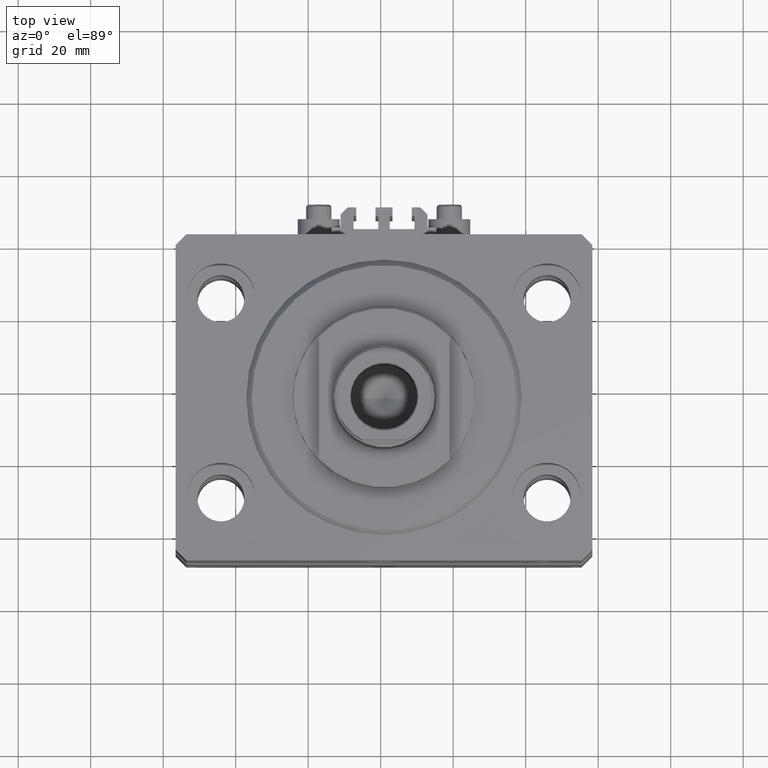
[diagram: clean part render]
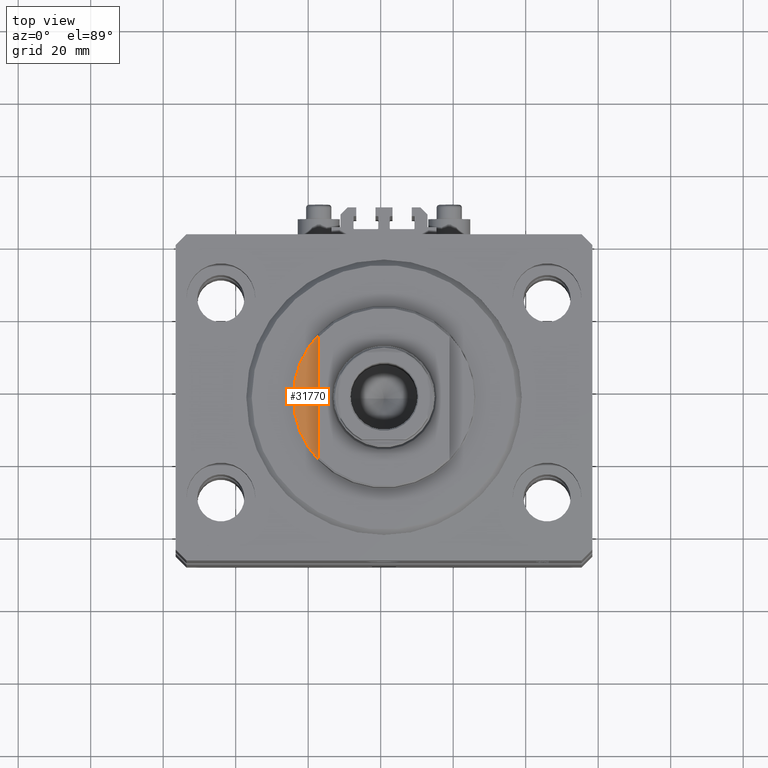
[diagram: same view with one face highlighted and labeled with its STEP entity id]
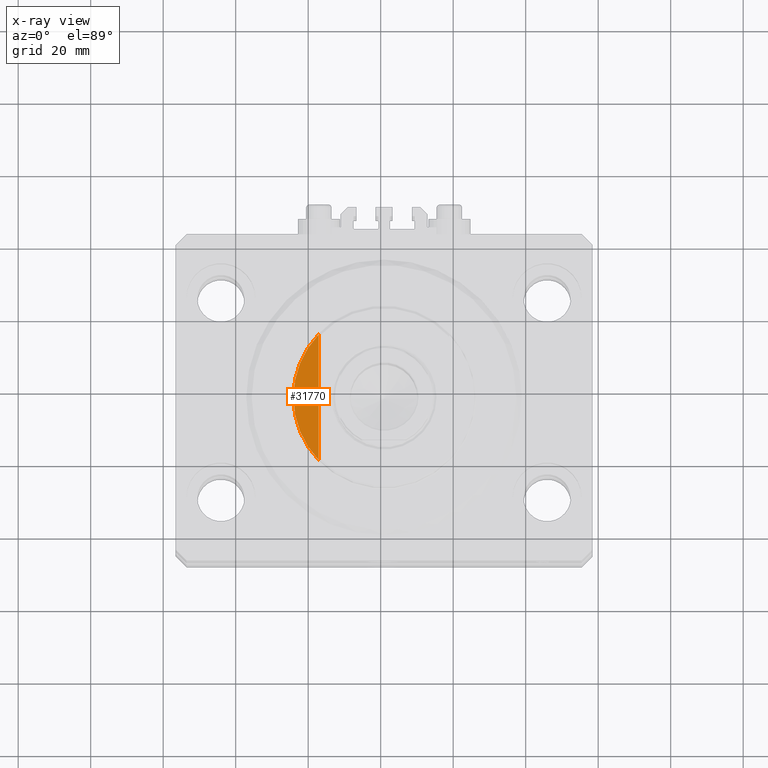
[diagram: x-ray of the same camera — body ghosted, the highlighted face saturated]
A machine part, top view. The second image highlights one B-rep face of the part: STEP entity #31770.
The next image is the same camera in x-ray: the body ghosted, the highlighted face saturated — about 0% of this face is hidden behind the body in this view.
In plain terms, the highlighted planar face has unit normal (0, 0, 1).
Its self-contained STEP definition (entity closure, byte-faithful):
#2500 = CARTESIAN_POINT ( 'NONE',  ( 18.00000000000000000, -41.24318125460256113, -1.000000000000000000 ) ) ;
#3772 = CARTESIAN_POINT ( 'NONE',  ( 18.00000000000000000, -17.34935157289747920, -1.000000000000000000 ) ) ;
#4175 = ORIENTED_EDGE ( 'NONE', *, *, #20246, .T. ) ;
#5042 = CARTESIAN_POINT ( 'NONE',  ( 0.000000000000000000, 0.000000000000000000, -1.000000000000000000 ) ) ;
#8407 = CARTESIAN_POINT ( 'NONE',  ( 18.00000000000000000, 17.34935157289747920, -1.000000000000000000 ) ) ;
#9531 = DIRECTION ( 'NONE',  ( 1.000000000000000000, 0.000000000000000000, 0.000000000000000000 ) ) ;
#9915 = CARTESIAN_POINT ( 'NONE',  ( 0.000000000000000000, 0.000000000000000000, -1.000000000000000000 ) ) ;
#10408 = DIRECTION ( 'NONE',  ( -1.000000000000000000, 0.000000000000000000, 0.000000000000000000 ) ) ;
#11905 = ORIENTED_EDGE ( 'NONE', *, *, #27205, .F. ) ;
#16075 = CIRCLE ( 'NONE', #43877, 25.00000000000000000 ) ;
#16401 = AXIS2_PLACEMENT_3D ( 'NONE', #5042, #46350, #9531 ) ;
#19522 = AXIS2_PLACEMENT_3D ( 'NONE', #40099, #32400, #47574 ) ;
#20246 = EDGE_CURVE ( 'NONE', #23158, #23187, #16075, .T. ) ;
#20473 = FACE_OUTER_BOUND ( 'NONE', #23320, .T. ) ;
#23158 = VERTEX_POINT ( 'NONE', #31966 ) ;
#23187 = VERTEX_POINT ( 'NONE', #3772 ) ;
#23320 = EDGE_LOOP ( 'NONE', ( #33490, #4175, #11905 ) ) ;
#25553 = DIRECTION ( 'NONE',  ( 0.000000000000000000, 0.000000000000000000, -1.000000000000000000 ) ) ;
#27205 = EDGE_CURVE ( 'NONE', #35163, #23187, #44034, .T. ) ;
#31770 = ADVANCED_FACE ( 'NONE', ( #20473 ), #43593, .T. ) ;
#31966 = CARTESIAN_POINT ( 'NONE',  ( 25.00000000000000000, 0.000000000000000000, -1.000000000000000000 ) ) ;
#32400 = DIRECTION ( 'NONE',  ( 0.000000000000000000, 0.000000000000000000, -1.000000000000000000 ) ) ;
#33490 = ORIENTED_EDGE ( 'NONE', *, *, #44242, .T. ) ;
#33795 = CIRCLE ( 'NONE', #19522, 25.00000000000000000 ) ;
#35163 = VERTEX_POINT ( 'NONE', #8407 ) ;
#40047 = VECTOR ( 'NONE', #48750, 1000.000000000000000 ) ;
#40099 = CARTESIAN_POINT ( 'NONE',  ( 0.000000000000000000, 0.000000000000000000, -1.000000000000000000 ) ) ;
#43593 = PLANE ( 'NONE',  #16401 ) ;
#43877 = AXIS2_PLACEMENT_3D ( 'NONE', #9915, #25553, #10408 ) ;
#44034 = LINE ( 'NONE', #2500, #40047 ) ;
#44242 = EDGE_CURVE ( 'NONE', #35163, #23158, #33795, .T. ) ;
#46350 = DIRECTION ( 'NONE',  ( 0.000000000000000000, 0.000000000000000000, -1.000000000000000000 ) ) ;
#47574 = DIRECTION ( 'NONE',  ( -1.000000000000000000, 0.000000000000000000, 0.000000000000000000 ) ) ;
#48750 = DIRECTION ( 'NONE',  ( 0.000000000000000000, -1.000000000000000000, -0.000000000000000000 ) ) ;